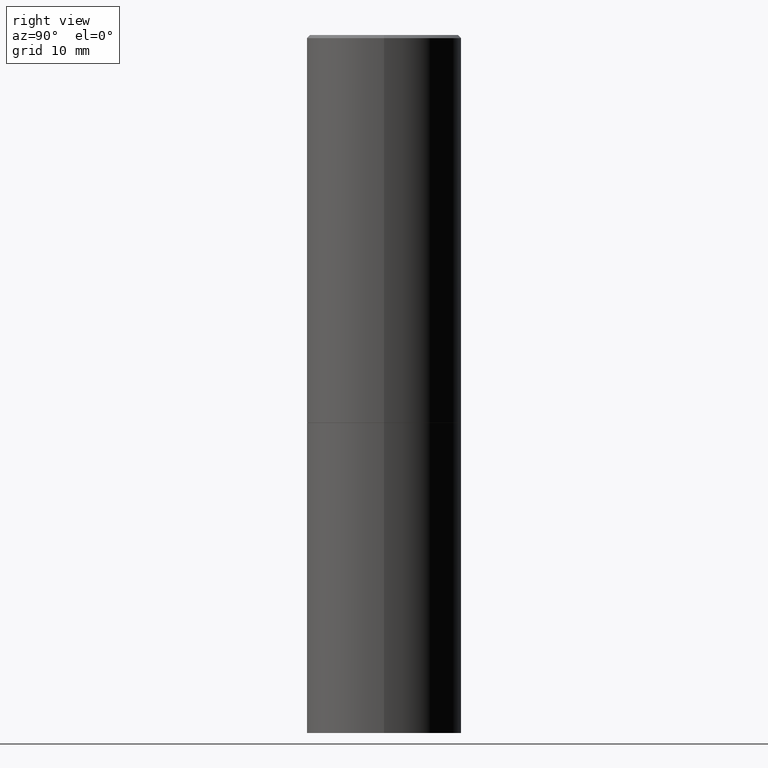
[diagram: clean part render]
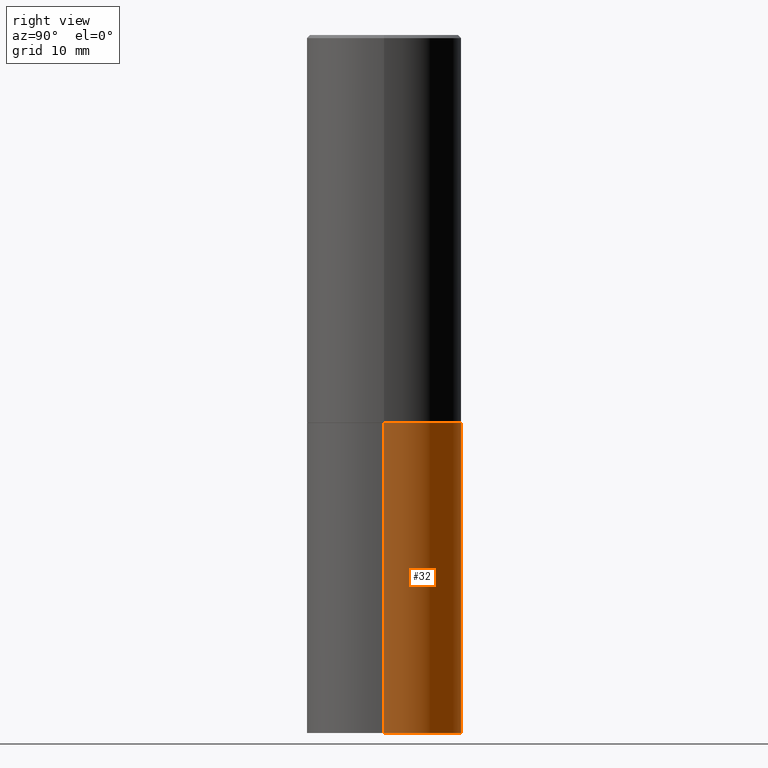
[diagram: same view with one face highlighted and labeled with its STEP entity id]
A machine part, right view. The second image highlights one B-rep face of the part: STEP entity #32.
In plain terms, the highlighted cylindrical surface (partial cylindrical patch) has radius 12.7 mm, axis along (-0, 0, 1).
Its self-contained STEP definition (entity closure, byte-faithful):
#2 = CARTESIAN_POINT ( 'NONE',  ( 6.113672015462842613E-29, -8.728703347107864943E-15, -2.500000000000000000 ) ) ;
#4 = ORIENTED_EDGE ( 'NONE', *, *, #177, .T. ) ;
#23 = AXIS2_PLACEMENT_3D ( 'NONE', #2, #114, #199 ) ;
#32 = ADVANCED_FACE ( 'NONE', ( #290 ), #297, .T. ) ;
#40 = DIRECTION ( 'NONE',  ( 1.000000000000000000, -6.982962677686266711E-15, 4.876176775795935793E-29 ) ) ;
#61 = VERTEX_POINT ( 'NONE', #130 ) ;
#62 = VERTEX_POINT ( 'NONE', #242 ) ;
#69 = ORIENTED_EDGE ( 'NONE', *, *, #139, .F. ) ;
#73 = AXIS2_PLACEMENT_3D ( 'NONE', #123, #260, #40 ) ;
#74 = DIRECTION ( 'NONE',  ( 1.000000000000000000, -6.982962677686266711E-15, 0.000000000000000000 ) ) ;
#87 = EDGE_CURVE ( 'NONE', #121, #365, #188, .T. ) ;
#93 = DIRECTION ( 'NONE',  ( -2.445468806185136597E-29, 3.491481338843145583E-15, 1.000000000000000000 ) ) ;
#101 = CARTESIAN_POINT ( 'NONE',  ( 0.5000000000000000000, -1.920314736363729025E-14, -4.500000000000000000 ) ) ;
#114 = DIRECTION ( 'NONE',  ( -2.445468806185136597E-29, 3.491481338843145583E-15, 1.000000000000000000 ) ) ;
#121 = VERTEX_POINT ( 'NONE', #101 ) ;
#123 = CARTESIAN_POINT ( 'NONE',  ( 0.000000000000000000, 0.000000000000000000, 0.000000000000000000 ) ) ;
#130 = CARTESIAN_POINT ( 'NONE',  ( -0.5000000000000000000, -8.667471007150509990E-15, -2.500000000000000000 ) ) ;
#131 = LINE ( 'NONE', #332, #198 ) ;
#139 = EDGE_CURVE ( 'NONE', #121, #62, #164, .T. ) ;
#157 = CARTESIAN_POINT ( 'NONE',  ( 0.5000000000000000000, -3.491481338843133355E-15, 2.438088387897967896E-29 ) ) ;
#164 = LINE ( 'NONE', #157, #312 ) ;
#172 = CARTESIAN_POINT ( 'NONE',  ( -0.5000000000000000000, -8.667471007150509990E-15, -4.500000000000000000 ) ) ;
#177 = EDGE_CURVE ( 'NONE', #365, #61, #131, .T. ) ;
#188 = CIRCLE ( 'NONE', #279, 0.5000000000000000000 ) ;
#198 = VECTOR ( 'NONE', #303, 39.37007874015748143 ) ;
#199 = DIRECTION ( 'NONE',  ( 1.000000000000000000, -6.982962677686269077E-15, 0.000000000000000000 ) ) ;
#234 = EDGE_LOOP ( 'NONE', ( #353, #4, #318, #69 ) ) ;
#242 = CARTESIAN_POINT ( 'NONE',  ( 0.5000000000000000000, -1.222018468595099830E-14, -2.500000000000000000 ) ) ;
#260 = DIRECTION ( 'NONE',  ( -2.445468806185136597E-29, 3.491481338843145583E-15, 1.000000000000000000 ) ) ;
#270 = DIRECTION ( 'NONE',  ( -2.445468806185136877E-29, 3.491481338843145188E-15, 1.000000000000000000 ) ) ;
#271 = CIRCLE ( 'NONE', #23, 0.5000000000000000000 ) ;
#279 = AXIS2_PLACEMENT_3D ( 'NONE', #351, #93, #74 ) ;
#290 = FACE_OUTER_BOUND ( 'NONE', #234, .T. ) ;
#297 = CYLINDRICAL_SURFACE ( 'NONE', #73, 0.5000000000000000000 ) ;
#303 = DIRECTION ( 'NONE',  ( -2.445468806185136877E-29, 3.491481338843145188E-15, 1.000000000000000000 ) ) ;
#312 = VECTOR ( 'NONE', #270, 39.37007874015748143 ) ;
#318 = ORIENTED_EDGE ( 'NONE', *, *, #357, .F. ) ;
#332 = CARTESIAN_POINT ( 'NONE',  ( -0.5000000000000000000, 3.552713678800500929E-15, -2.459467545127452891E-29 ) ) ;
#351 = CARTESIAN_POINT ( 'NONE',  ( 1.100460962783311469E-28, -1.571166602479415690E-14, -4.500000000000000000 ) ) ;
#353 = ORIENTED_EDGE ( 'NONE', *, *, #87, .T. ) ;
#357 = EDGE_CURVE ( 'NONE', #62, #61, #271, .T. ) ;
#365 = VERTEX_POINT ( 'NONE', #172 ) ;